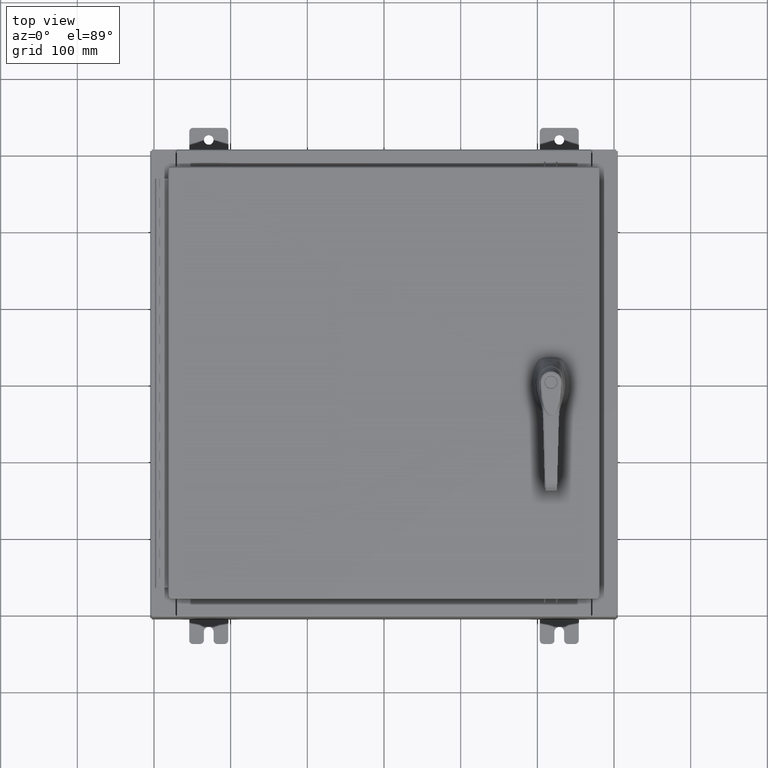
[diagram: clean part render]
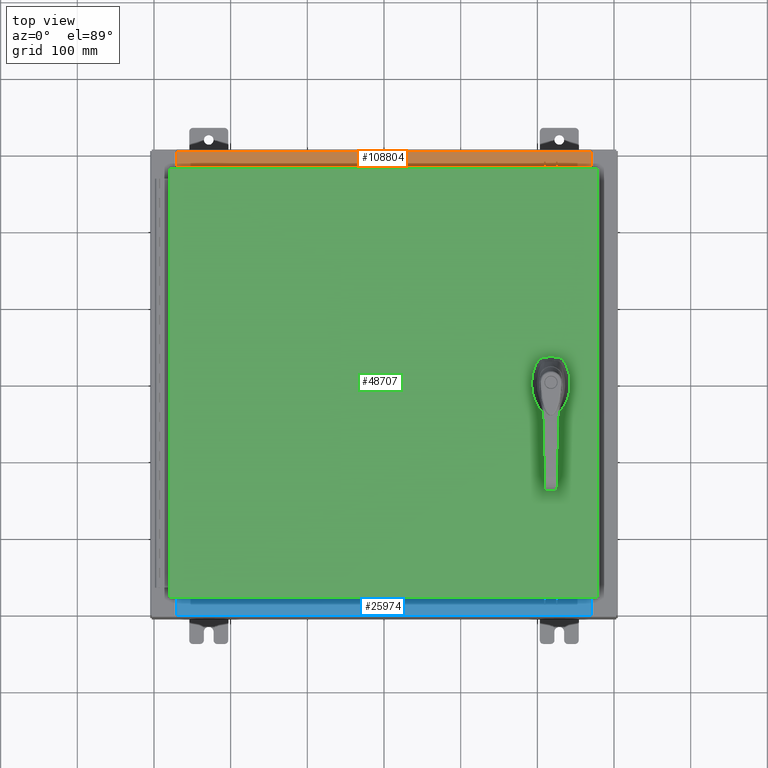
[diagram: same view with three faces highlighted in distinct colors, each labeled with its STEP entity id]
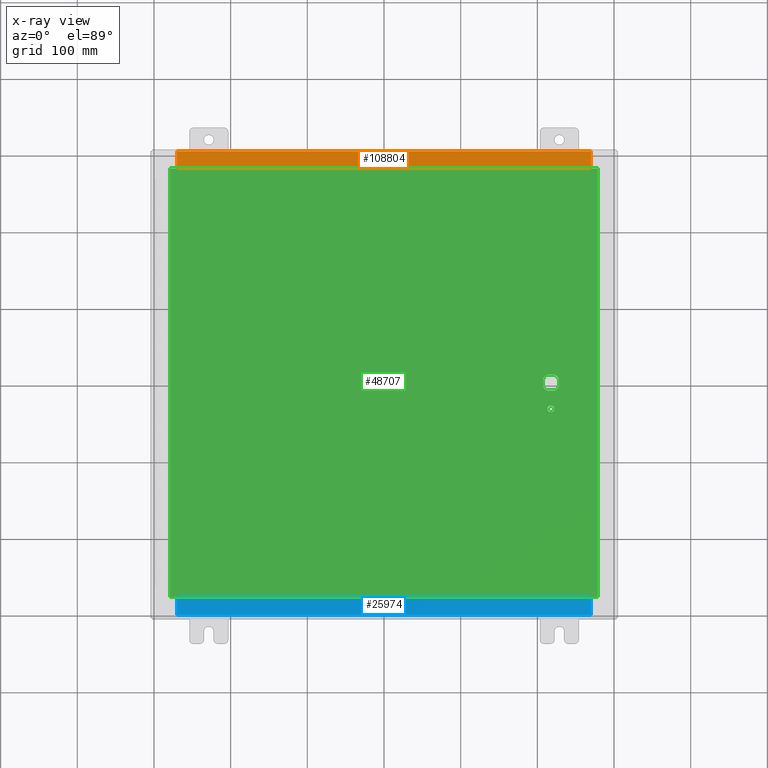
[diagram: x-ray of the same camera — body ghosted, the three highlighted faces saturated]
A machine part, top view with three faces highlighted in distinct colors.
The next image is the same camera in x-ray (body ghosted, the three faces saturated) — at least one of them is partly hidden behind the body in this view.
Their STEP definitions:

[orange] entity #108804 — the highlighted planar face has unit normal (0, 0, 1).
#4291 = VERTEX_POINT ( 'NONE', #14684 ) ;
#5370 = EDGE_CURVE ( 'NONE', #73114, #84867, #54907, .T. ) ;
#5878 = EDGE_CURVE ( 'NONE', #4291, #74881, #48066, .T. ) ;
#9236 = VECTOR ( 'NONE', #92342, 39.37007874015748100 ) ;
#14684 = CARTESIAN_POINT ( 'NONE',  ( 10.63720000000000400, -0.08769999999999965300, 4.000000000000000000 ) ) ;
#18525 = CARTESIAN_POINT ( 'NONE',  ( 0.0000000000000000000, 1.425992975200418500E-014, 4.000000000000000000 ) ) ;
#21585 = CARTESIAN_POINT ( 'NONE',  ( 10.63720000000000400, -1.287299999999999900, 4.000000000000003600 ) ) ;
#22842 = EDGE_CURVE ( 'NONE', #4291, #84867, #73019, .T. ) ;
#24422 = EDGE_LOOP ( 'NONE', ( #80018, #78858, #76075, #109680 ) ) ;
#27981 = DIRECTION ( 'NONE',  ( 0.0000000000000000000, 3.566381192773190000E-015, 1.000000000000000000 ) ) ;
#28668 = CARTESIAN_POINT ( 'NONE',  ( 10.63720000000000200, -1.287299999999999900, 4.000000000000004400 ) ) ;
#28723 = FACE_OUTER_BOUND ( 'NONE', #24422, .T. ) ;
#29523 = VECTOR ( 'NONE', #47852, 39.37007874015748100 ) ;
#31720 = CARTESIAN_POINT ( 'NONE',  ( -2.252313287748606700E-018, -0.08770000000000000000, 4.000000000000000900 ) ) ;
#34819 = CARTESIAN_POINT ( 'NONE',  ( 10.63720000000000200, -1.300299999999999800, 4.000000000000004400 ) ) ;
#37750 = LINE ( 'NONE', #21585, #29523 ) ;
#47852 = DIRECTION ( 'NONE',  ( -1.000000000000000000, 0.0000000000000000000, 0.0000000000000000000 ) ) ;
#48066 = LINE ( 'NONE', #34819, #50804 ) ;
#48209 = CARTESIAN_POINT ( 'NONE',  ( -10.63720000000000200, -0.07469999999999973900, 4.000000000000000000 ) ) ;
#50804 = VECTOR ( 'NONE', #61365, 39.37007874015748100 ) ;
#51630 = CARTESIAN_POINT ( 'NONE',  ( -10.63720000000000200, -1.287299999999999200, 4.000000000000004400 ) ) ;
#54907 = LINE ( 'NONE', #48209, #100888 ) ;
#61365 = DIRECTION ( 'NONE',  ( -0.0000000000000000000, -1.000000000000000000, 3.566381192773190000E-015 ) ) ;
#73019 = LINE ( 'NONE', #31720, #9236 ) ;
#73114 = VERTEX_POINT ( 'NONE', #51630 ) ;
#74881 = VERTEX_POINT ( 'NONE', #28668 ) ;
#76075 = ORIENTED_EDGE ( 'NONE', *, *, #5878, .F. ) ;
#78858 = ORIENTED_EDGE ( 'NONE', *, *, #93355, .F. ) ;
#79939 = PLANE ( 'NONE',  #87721 ) ;
#80018 = ORIENTED_EDGE ( 'NONE', *, *, #5370, .F. ) ;
#84867 = VERTEX_POINT ( 'NONE', #111481 ) ;
#87721 = AXIS2_PLACEMENT_3D ( 'NONE', #18525, #27981, #88635 ) ;
#88635 = DIRECTION ( 'NONE',  ( 0.0000000000000000000, -1.000000000000000000, 3.566381192773190000E-015 ) ) ;
#92342 = DIRECTION ( 'NONE',  ( -1.000000000000000000, 2.568202152506545800E-017, -9.159187855938968600E-032 ) ) ;
#93355 = EDGE_CURVE ( 'NONE', #74881, #73114, #37750, .T. ) ;
#100888 = VECTOR ( 'NONE', #108689, 39.37007874015748100 ) ;
#108689 = DIRECTION ( 'NONE',  ( -0.0000000000000000000, 1.000000000000000000, -3.566381192773190000E-015 ) ) ;
#108804 = ADVANCED_FACE ( 'NONE', ( #28723 ), #79939, .T. ) ;
#109680 = ORIENTED_EDGE ( 'NONE', *, *, #22842, .T. ) ;
#111481 = CARTESIAN_POINT ( 'NONE',  ( -10.63720000000000200, -0.08770000000000000000, 4.000000000000000000 ) ) ;

[blue] entity #25974 — the highlighted planar face has unit normal (-0, -0, 1).
#4932 = CARTESIAN_POINT ( 'NONE',  ( -10.63720000000000200, -0.07469999999999973900, 4.000000000000000000 ) ) ;
#6201 = VERTEX_POINT ( 'NONE', #64702 ) ;
#9342 = PLANE ( 'NONE',  #53190 ) ;
#9383 = CARTESIAN_POINT ( 'NONE',  ( -2.252313287748606700E-018, -0.08770000000000000000, 4.000000000000000900 ) ) ;
#10794 = LINE ( 'NONE', #9383, #79998 ) ;
#12362 = ORIENTED_EDGE ( 'NONE', *, *, #89701, .T. ) ;
#14766 = EDGE_CURVE ( 'NONE', #21319, #55387, #45566, .T. ) ;
#18100 = DIRECTION ( 'NONE',  ( -1.000000000000000000, 2.568202152506545800E-017, -9.159187855938968600E-032 ) ) ;
#21319 = VERTEX_POINT ( 'NONE', #108069 ) ;
#25280 = ORIENTED_EDGE ( 'NONE', *, *, #102928, .F. ) ;
#25974 = ADVANCED_FACE ( 'NONE', ( #109928 ), #9342, .T. ) ;
#26799 = DIRECTION ( 'NONE',  ( 0.0000000000000000000, -1.000000000000000000, 3.566381192773190000E-015 ) ) ;
#28061 = LINE ( 'NONE', #50306, #74239 ) ;
#28476 = VERTEX_POINT ( 'NONE', #107050 ) ;
#30950 = CARTESIAN_POINT ( 'NONE',  ( 10.63720000000000400, -1.287299999999999900, 4.000000000000003600 ) ) ;
#45566 = LINE ( 'NONE', #4932, #65822 ) ;
#48258 = DIRECTION ( 'NONE',  ( -0.0000000000000000000, 1.000000000000000000, -3.566381192773190000E-015 ) ) ;
#50306 = CARTESIAN_POINT ( 'NONE',  ( 10.63720000000000200, -1.300299999999999800, 4.000000000000004400 ) ) ;
#50831 = EDGE_LOOP ( 'NONE', ( #100332, #89115, #25280, #12362 ) ) ;
#52249 = CARTESIAN_POINT ( 'NONE',  ( -10.63720000000000200, -0.08770000000000000000, 4.000000000000000000 ) ) ;
#53190 = AXIS2_PLACEMENT_3D ( 'NONE', #70025, #78751, #26799 ) ;
#55387 = VERTEX_POINT ( 'NONE', #52249 ) ;
#63460 = LINE ( 'NONE', #30950, #109437 ) ;
#64702 = CARTESIAN_POINT ( 'NONE',  ( 10.63720000000000400, -0.08769999999999965300, 4.000000000000000000 ) ) ;
#65822 = VECTOR ( 'NONE', #48258, 39.37007874015748100 ) ;
#67338 = EDGE_CURVE ( 'NONE', #28476, #21319, #63460, .T. ) ;
#70025 = CARTESIAN_POINT ( 'NONE',  ( 0.0000000000000000000, 1.425992975200418500E-014, 4.000000000000000000 ) ) ;
#74197 = DIRECTION ( 'NONE',  ( -1.000000000000000000, 0.0000000000000000000, 0.0000000000000000000 ) ) ;
#74239 = VECTOR ( 'NONE', #110740, 39.37007874015748100 ) ;
#78751 = DIRECTION ( 'NONE',  ( 0.0000000000000000000, 3.566381192773190000E-015, 1.000000000000000000 ) ) ;
#79998 = VECTOR ( 'NONE', #18100, 39.37007874015748100 ) ;
#89115 = ORIENTED_EDGE ( 'NONE', *, *, #67338, .F. ) ;
#89701 = EDGE_CURVE ( 'NONE', #6201, #55387, #10794, .T. ) ;
#100332 = ORIENTED_EDGE ( 'NONE', *, *, #14766, .F. ) ;
#102928 = EDGE_CURVE ( 'NONE', #6201, #28476, #28061, .T. ) ;
#107050 = CARTESIAN_POINT ( 'NONE',  ( 10.63720000000000200, -1.287299999999999900, 4.000000000000004400 ) ) ;
#108069 = CARTESIAN_POINT ( 'NONE',  ( -10.63720000000000200, -1.287299999999999200, 4.000000000000004400 ) ) ;
#109437 = VECTOR ( 'NONE', #74197, 39.37007874015748100 ) ;
#109928 = FACE_OUTER_BOUND ( 'NONE', #50831, .T. ) ;
#110740 = DIRECTION ( 'NONE',  ( -0.0000000000000000000, -1.000000000000000000, 3.566381192773190000E-015 ) ) ;

[green] entity #48707 — the highlighted planar face has unit normal (0, 0, -1).
#1336 = EDGE_CURVE ( 'NONE', #49987, #91151, #41596, .T. ) ;
#1357 = EDGE_CURVE ( 'NONE', #75409, #98551, #84935, .T. ) ;
#1978 = CARTESIAN_POINT ( 'NONE',  ( 8.749499999999997600, -1.338000000000000100, 0.0000000000000000000 ) ) ;
#5155 = CARTESIAN_POINT ( 'NONE',  ( 0.0000000000000000000, 0.4029999999999252000, 0.0000000000000000000 ) ) ;
#6827 = VERTEX_POINT ( 'NONE', #103471 ) ;
#10275 = CARTESIAN_POINT ( 'NONE',  ( -10.99030000000000500, 11.00629999999999600, -1.348849946871729900E-015 ) ) ;
#11840 = LINE ( 'NONE', #107061, #32233 ) ;
#13433 = EDGE_CURVE ( 'NONE', #27384, #6827, #44363, .T. ) ;
#13839 = DIRECTION ( 'NONE',  ( -1.000000000000000000, 0.0000000000000000000, 0.0000000000000000000 ) ) ;
#14133 = DIRECTION ( 'NONE',  ( 0.0000000000000000000, -1.000000000000000000, 0.0000000000000000000 ) ) ;
#14841 = CARTESIAN_POINT ( 'NONE',  ( 8.980999999999921700, 0.2002273707563080300, 0.0000000000000000000 ) ) ;
#15685 = VERTEX_POINT ( 'NONE', #56496 ) ;
#17208 = CIRCLE ( 'NONE', #67414, 0.1715000000000011500 ) ;
#17532 = VECTOR ( 'NONE', #79437, 39.37007874015748100 ) ;
#17712 = VECTOR ( 'NONE', #103607, 39.37007874015748100 ) ;
#17735 = DIRECTION ( 'NONE',  ( -0.0000000000000000000, 0.0000000000000000000, 1.000000000000000000 ) ) ;
#19158 = CARTESIAN_POINT ( 'NONE',  ( 8.778227370756305000, 0.4029999999999252000, 0.0000000000000000000 ) ) ;
#20704 = DIRECTION ( 'NONE',  ( 1.000000000000000000, 0.0000000000000000000, 0.0000000000000000000 ) ) ;
#21150 = DIRECTION ( 'NONE',  ( -0.0000000000000000000, 0.0000000000000000000, 1.000000000000000000 ) ) ;
#21183 = VECTOR ( 'NONE', #68376, 39.37007874015748100 ) ;
#21589 = DIRECTION ( 'NONE',  ( -0.0000000000000000000, 0.0000000000000000000, 1.000000000000000000 ) ) ;
#22219 = AXIS2_PLACEMENT_3D ( 'NONE', #94796, #42973, #103475 ) ;
#22283 = CARTESIAN_POINT ( 'NONE',  ( 8.577999999999995900, 0.0000000000000000000, 0.0000000000000000000 ) ) ;
#23123 = PLANE ( 'NONE',  #59653 ) ;
#23502 = DIRECTION ( 'NONE',  ( -1.000000000000000000, 0.0000000000000000000, -0.0000000000000000000 ) ) ;
#24085 = ORIENTED_EDGE ( 'NONE', *, *, #63645, .T. ) ;
#24153 = CARTESIAN_POINT ( 'NONE',  ( 10.99029999999999800, 11.00629999999999600, -2.048885995248197400E-016 ) ) ;
#24171 = FACE_BOUND ( 'NONE', #101055, .T. ) ;
#25498 = ORIENTED_EDGE ( 'NONE', *, *, #68808, .F. ) ;
#25978 = CARTESIAN_POINT ( 'NONE',  ( 10.99029999999999600, -11.00630000000000100, -2.048885995248197400E-016 ) ) ;
#26891 = FACE_BOUND ( 'NONE', #29841, .T. ) ;
#27384 = VERTEX_POINT ( 'NONE', #59641 ) ;
#28884 = CARTESIAN_POINT ( 'NONE',  ( 10.99029999999999800, 11.00629999999999600, -2.048885995248197400E-016 ) ) ;
#29841 = EDGE_LOOP ( 'NONE', ( #71558, #52295 ) ) ;
#31013 = DIRECTION ( 'NONE',  ( 1.000000000000000000, 0.0000000000000000000, 0.0000000000000000000 ) ) ;
#32233 = VECTOR ( 'NONE', #20704, 39.37007874015748100 ) ;
#33279 = ORIENTED_EDGE ( 'NONE', *, *, #71647, .T. ) ;
#33620 = EDGE_CURVE ( 'NONE', #63295, #15685, #97130, .T. ) ;
#33654 = VERTEX_POINT ( 'NONE', #96205 ) ;
#36993 = VECTOR ( 'NONE', #13839, 39.37007874015748100 ) ;
#38466 = ORIENTED_EDGE ( 'NONE', *, *, #70034, .T. ) ;
#41596 = CIRCLE ( 'NONE', #98826, 0.4499999999999156900 ) ;
#42973 = DIRECTION ( 'NONE',  ( -0.0000000000000000000, 0.0000000000000000000, 1.000000000000000000 ) ) ;
#44363 = CIRCLE ( 'NONE', #48176, 0.4499999999999156900 ) ;
#44409 = LINE ( 'NONE', #54249, #93112 ) ;
#45091 = CARTESIAN_POINT ( 'NONE',  ( 8.175000000000070000, -0.2002273707563079800, 0.0000000000000000000 ) ) ;
#45835 = CIRCLE ( 'NONE', #53389, 0.4499999999999156900 ) ;
#48176 = AXIS2_PLACEMENT_3D ( 'NONE', #22283, #82945, #31013 ) ;
#48511 = CARTESIAN_POINT ( 'NONE',  ( 8.577999999999995900, 0.0000000000000000000, 0.0000000000000000000 ) ) ;
#48707 = ADVANCED_FACE ( 'NONE', ( #26891, #70307, #24171 ), #23123, .F. ) ;
#49987 = VERTEX_POINT ( 'NONE', #14841 ) ;
#50416 = ORIENTED_EDGE ( 'NONE', *, *, #90164, .T. ) ;
#51645 = LINE ( 'NONE', #100577, #71911 ) ;
#52025 = CARTESIAN_POINT ( 'NONE',  ( 8.406499999999994100, -1.338000000000000100, 0.0000000000000000000 ) ) ;
#52295 = ORIENTED_EDGE ( 'NONE', *, *, #73309, .F. ) ;
#53232 = VERTEX_POINT ( 'NONE', #76503 ) ;
#53389 = AXIS2_PLACEMENT_3D ( 'NONE', #48511, #108976, #57200 ) ;
#53655 = EDGE_CURVE ( 'NONE', #53232, #63295, #51645, .T. ) ;
#54249 = CARTESIAN_POINT ( 'NONE',  ( 8.980999999999921700, 2.450686610769031800E-014, 0.0000000000000000000 ) ) ;
#56496 = CARTESIAN_POINT ( 'NONE',  ( 8.377772629243686700, -0.4029999999999252000, 0.0000000000000000000 ) ) ;
#57200 = DIRECTION ( 'NONE',  ( 1.000000000000000000, 0.0000000000000000000, 0.0000000000000000000 ) ) ;
#57673 = CARTESIAN_POINT ( 'NONE',  ( 0.0000000000000000000, 0.0000000000000000000, 0.0000000000000000000 ) ) ;
#57733 = VECTOR ( 'NONE', #67750, 39.37007874015748100 ) ;
#58284 = LINE ( 'NONE', #59017, #17532 ) ;
#58774 = ORIENTED_EDGE ( 'NONE', *, *, #1357, .T. ) ;
#59017 = CARTESIAN_POINT ( 'NONE',  ( -10.99030000000000500, 11.00629999999999600, -1.348849946871729900E-015 ) ) ;
#59283 = CARTESIAN_POINT ( 'NONE',  ( 10.99029999999999600, -11.00630000000000100, -2.048885995248197400E-016 ) ) ;
#59641 = CARTESIAN_POINT ( 'NONE',  ( 8.778227370756305000, -0.4029999999999252000, 0.0000000000000000000 ) ) ;
#59653 = AXIS2_PLACEMENT_3D ( 'NONE', #57673, #75455, #23502 ) ;
#61312 = VERTEX_POINT ( 'NONE', #86142 ) ;
#63295 = VERTEX_POINT ( 'NONE', #45091 ) ;
#63645 = EDGE_CURVE ( 'NONE', #103670, #75409, #86921, .T. ) ;
#65659 = CIRCLE ( 'NONE', #22219, 0.1715000000000011500 ) ;
#67414 = AXIS2_PLACEMENT_3D ( 'NONE', #73561, #21589, #82261 ) ;
#67750 = DIRECTION ( 'NONE',  ( 1.000000000000000000, -0.0000000000000000000, -0.0000000000000000000 ) ) ;
#68376 = DIRECTION ( 'NONE',  ( -1.000000000000000000, -0.0000000000000000000, -0.0000000000000000000 ) ) ;
#68808 = EDGE_CURVE ( 'NONE', #15685, #27384, #11840, .T. ) ;
#69533 = EDGE_CURVE ( 'NONE', #61312, #53232, #45835, .T. ) ;
#69707 = CARTESIAN_POINT ( 'NONE',  ( 8.577999999999995900, 0.0000000000000000000, 0.0000000000000000000 ) ) ;
#70034 = EDGE_CURVE ( 'NONE', #49987, #6827, #44409, .T. ) ;
#70307 = FACE_OUTER_BOUND ( 'NONE', #71219, .T. ) ;
#71219 = EDGE_LOOP ( 'NONE', ( #33279, #24085, #58774, #50416 ) ) ;
#71253 = DIRECTION ( 'NONE',  ( 2.728745808672812900E-015, -1.000000000000000000, 0.0000000000000000000 ) ) ;
#71558 = ORIENTED_EDGE ( 'NONE', *, *, #76276, .F. ) ;
#71647 = EDGE_CURVE ( 'NONE', #33654, #103670, #103735, .T. ) ;
#71911 = VECTOR ( 'NONE', #14133, 39.37007874015748100 ) ;
#72931 = ORIENTED_EDGE ( 'NONE', *, *, #69533, .F. ) ;
#73309 = EDGE_CURVE ( 'NONE', #108762, #103296, #65659, .T. ) ;
#73561 = CARTESIAN_POINT ( 'NONE',  ( 8.577999999999995900, -1.338000000000000100, 0.0000000000000000000 ) ) ;
#74604 = CARTESIAN_POINT ( 'NONE',  ( 8.577999999999995900, 0.0000000000000000000, 0.0000000000000000000 ) ) ;
#75409 = VERTEX_POINT ( 'NONE', #28884 ) ;
#75455 = DIRECTION ( 'NONE',  ( 0.0000000000000000000, 0.0000000000000000000, -1.000000000000000000 ) ) ;
#76276 = EDGE_CURVE ( 'NONE', #103296, #108762, #17208, .T. ) ;
#76503 = CARTESIAN_POINT ( 'NONE',  ( 8.175000000000070000, 0.2002273707563079800, 0.0000000000000000000 ) ) ;
#78432 = DIRECTION ( 'NONE',  ( 1.000000000000000000, 0.0000000000000000000, 0.0000000000000000000 ) ) ;
#79437 = DIRECTION ( 'NONE',  ( 0.0000000000000000000, -1.000000000000000000, 0.0000000000000000000 ) ) ;
#82261 = DIRECTION ( 'NONE',  ( 1.000000000000000000, 0.0000000000000000000, 0.0000000000000000000 ) ) ;
#82470 = AXIS2_PLACEMENT_3D ( 'NONE', #69707, #17735, #78432 ) ;
#82945 = DIRECTION ( 'NONE',  ( -0.0000000000000000000, 0.0000000000000000000, 1.000000000000000000 ) ) ;
#83084 = LINE ( 'NONE', #5155, #36993 ) ;
#84935 = LINE ( 'NONE', #24153, #21183 ) ;
#85171 = CARTESIAN_POINT ( 'NONE',  ( -10.99030000000000000, -11.00630000000000100, -2.048885995248197400E-016 ) ) ;
#86142 = CARTESIAN_POINT ( 'NONE',  ( 8.377772629243686700, 0.4029999999999252000, 0.0000000000000000000 ) ) ;
#86921 = LINE ( 'NONE', #25978, #17712 ) ;
#87103 = ORIENTED_EDGE ( 'NONE', *, *, #33620, .F. ) ;
#90164 = EDGE_CURVE ( 'NONE', #98551, #33654, #58284, .T. ) ;
#90499 = ORIENTED_EDGE ( 'NONE', *, *, #99430, .F. ) ;
#91151 = VERTEX_POINT ( 'NONE', #19158 ) ;
#93112 = VECTOR ( 'NONE', #71253, 39.37007874015748100 ) ;
#94228 = DIRECTION ( 'NONE',  ( 1.000000000000000000, 0.0000000000000000000, 0.0000000000000000000 ) ) ;
#94454 = ORIENTED_EDGE ( 'NONE', *, *, #1336, .F. ) ;
#94796 = CARTESIAN_POINT ( 'NONE',  ( 8.577999999999995900, -1.338000000000000100, 0.0000000000000000000 ) ) ;
#96205 = CARTESIAN_POINT ( 'NONE',  ( -10.99030000000000000, -11.00630000000000100, -2.048885995248197400E-016 ) ) ;
#97130 = CIRCLE ( 'NONE', #82470, 0.4499999999999156900 ) ;
#98404 = ORIENTED_EDGE ( 'NONE', *, *, #53655, .F. ) ;
#98551 = VERTEX_POINT ( 'NONE', #10275 ) ;
#98826 = AXIS2_PLACEMENT_3D ( 'NONE', #74604, #21150, #94228 ) ;
#99430 = EDGE_CURVE ( 'NONE', #91151, #61312, #83084, .T. ) ;
#100577 = CARTESIAN_POINT ( 'NONE',  ( 8.175000000000070000, 0.0000000000000000000, 0.0000000000000000000 ) ) ;
#101055 = EDGE_LOOP ( 'NONE', ( #38466, #102888, #25498, #87103, #98404, #72931, #90499, #94454 ) ) ;
#102888 = ORIENTED_EDGE ( 'NONE', *, *, #13433, .F. ) ;
#103296 = VERTEX_POINT ( 'NONE', #1978 ) ;
#103471 = CARTESIAN_POINT ( 'NONE',  ( 8.980999999999921700, -0.2002273707563079800, 0.0000000000000000000 ) ) ;
#103475 = DIRECTION ( 'NONE',  ( 1.000000000000000000, 0.0000000000000000000, 0.0000000000000000000 ) ) ;
#103607 = DIRECTION ( 'NONE',  ( 0.0000000000000000000, 1.000000000000000000, 0.0000000000000000000 ) ) ;
#103670 = VERTEX_POINT ( 'NONE', #59283 ) ;
#103735 = LINE ( 'NONE', #85171, #57733 ) ;
#107061 = CARTESIAN_POINT ( 'NONE',  ( 0.0000000000000000000, -0.4029999999999252000, 0.0000000000000000000 ) ) ;
#108762 = VERTEX_POINT ( 'NONE', #52025 ) ;
#108976 = DIRECTION ( 'NONE',  ( -0.0000000000000000000, 0.0000000000000000000, 1.000000000000000000 ) ) ;